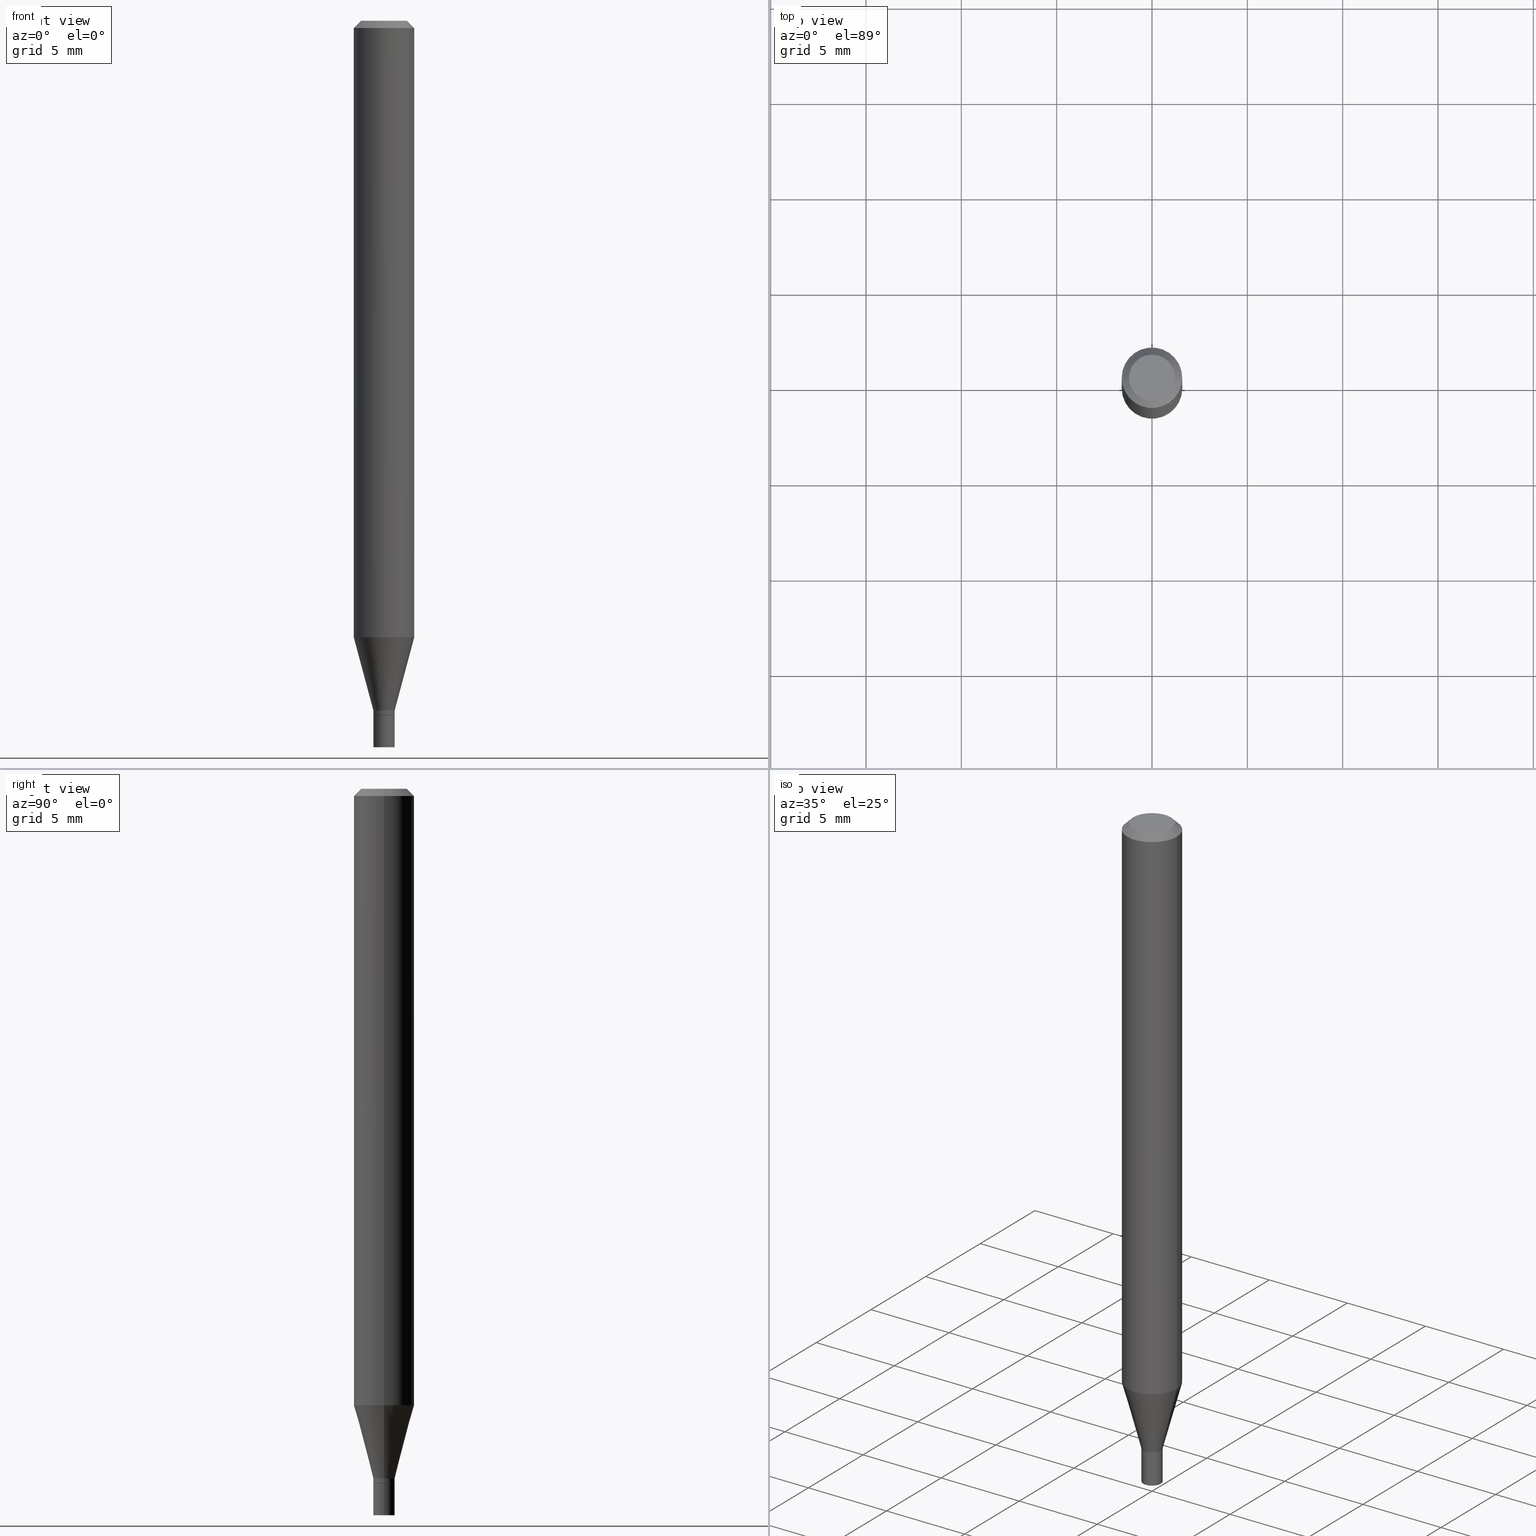
[diagram: canonical four-view strip — front | top / right | iso, engineering-drawing reading convention]
A machine part, canonical four-view strip (front | top / right | iso — engineering-drawing reading convention). The complete STEP part file that produces these views, byte-faithful:
ISO-10303-21;
HEADER;
FILE_DESCRIPTION (( 'STEP AP203' ),
    '1' );
FILE_NAME ('01124.STEP',
    '2024-03-19T23:08:22',
    ( '' ),
    ( '' ),
    'SwSTEP 2.0',
    'SolidWorks 2023',
    '' );
FILE_SCHEMA (( 'CONFIG_CONTROL_DESIGN' ));
ENDSEC;

DATA;
#1 = ORIENTED_EDGE ( 'NONE', *, *, #151, .T. ) ;
#2 = ADVANCED_FACE ( 'NONE', ( #147 ), #47, .F. ) ;
#3 = VECTOR ( 'NONE', #407, 39.37007874015748143 ) ;
#4 = LINE ( 'NONE', #78, #251 ) ;
#5 = PRODUCT_DEFINITION_FORMATION_WITH_SPECIFIED_SOURCE ( 'ANY', '', #374, .NOT_KNOWN. ) ;
#6 =( NAMED_UNIT ( * ) SI_UNIT ( $, .STERADIAN. ) SOLID_ANGLE_UNIT ( ) );
#7 = DIRECTION ( 'NONE',  ( 1.000000000000000000, -6.982962677686266711E-15, 4.876176775795935793E-29 ) ) ;
#8 = CARTESIAN_POINT ( 'NONE',  ( 3.482347580007634944E-29, -4.971869426512640168E-15, -1.424000000000000155 ) ) ;
#9 = CARTESIAN_POINT ( 'NONE',  ( 0.000000000000000000, 0.000000000000000000, 0.000000000000000000 ) ) ;
#10 = VECTOR ( 'NONE', #232, 39.37007874015748143 ) ;
#11 = DATE_AND_TIME ( #269, #420 ) ;
#12 = FACE_OUTER_BOUND ( 'NONE', #278, .T. ) ;
#13 = CARTESIAN_POINT ( 'NONE',  ( 3.506802268069485929E-29, -5.006784239901070239E-15, -1.434000000000000163 ) ) ;
#14 = ADVANCED_FACE ( 'NONE', ( #324 ), #257, .T. ) ;
#15 = CC_DESIGN_PERSON_AND_ORGANIZATION_ASSIGNMENT ( #41, #187, ( #5 ) ) ;
#16 = APPROVAL_DATE_TIME ( #264, #68 ) ;
#17 = LINE ( 'NONE', #90, #10 ) ;
#18 = AXIS2_PLACEMENT_3D ( 'NONE', #246, #379, #313 ) ;
#19 = CC_DESIGN_SECURITY_CLASSIFICATION ( #103, ( #5 ) ) ;
#20 = DIRECTION ( 'NONE',  ( -2.445468806185136597E-29, 3.491481338843145583E-15, 1.000000000000000000 ) ) ;
#21 = DIRECTION ( 'NONE',  ( 1.000000000000000000, -6.982962677686265922E-15, 4.876176775795935793E-29 ) ) ;
#22 = ORIENTED_EDGE ( 'NONE', *, *, #216, .T. ) ;
#23 = CARTESIAN_POINT ( 'NONE',  ( 3.668203209277704895E-29, -5.237222008264718177E-15, -1.500000000000000222 ) ) ;
#24 = ORIENTED_EDGE ( 'NONE', *, *, #66, .T. ) ;
#25 = VECTOR ( 'NONE', #72, 39.37007874015748143 ) ;
#26 = LOCAL_TIME ( 19, 8, 22.00000000000000000, #142 ) ;
#27 = CARTESIAN_POINT ( 'NONE',  ( 3.482347580007634944E-29, -4.971869426512640168E-15, -1.424000000000000155 ) ) ;
#28 = VERTEX_POINT ( 'NONE', #389 ) ;
#29 = LINE ( 'NONE', #63, #342 ) ;
#30 = ORIENTED_EDGE ( 'NONE', *, *, #406, .F. ) ;
#31 = EDGE_CURVE ( 'NONE', #418, #28, #75, .T. ) ;
#32 = EDGE_CURVE ( 'NONE', #71, #414, #4, .T. ) ;
#33 =( NAMED_UNIT ( * ) PLANE_ANGLE_UNIT ( ) SI_UNIT ( $, .RADIAN. ) );
#34 = ORIENTED_EDGE ( 'NONE', *, *, #359, .F. ) ;
#35 = AXIS2_PLACEMENT_3D ( 'NONE', #419, #341, #21 ) ;
#36 = MECHANICAL_CONTEXT ( 'NONE', #81, 'mechanical' ) ;
#37 = LOCAL_TIME ( 19, 8, 22.00000000000000000, #195 ) ;
#38 = CARTESIAN_POINT ( 'NONE',  ( 0.02199999999999992240, -5.125494605421737215E-15, -1.424000000000000155 ) ) ;
#39 = EDGE_CURVE ( 'NONE', #350, #418, #170, .T. ) ;
#40 = ORIENTED_EDGE ( 'NONE', *, *, #330, .F. ) ;
#41 = PERSON_AND_ORGANIZATION ( #421, #439 ) ;
#42 = CARTESIAN_POINT ( 'NONE',  ( -0.02199999999999992240, 1.563194018672214895E-16, -1.082165719856075386E-30 ) ) ;
#43 = APPLICATION_CONTEXT ( 'configuration controlled 3d designs of mechanical parts and assemblies' ) ;
#44 = PERSON_AND_ORGANIZATION ( #421, #439 ) ;
#45 = CONICAL_SURFACE ( 'NONE', #404, 0.06250000000000000000, 0.7853981633974439491 ) ;
#46 = DIRECTION ( 'NONE',  ( -2.445468806185136597E-29, 3.491481338843145583E-15, 1.000000000000000000 ) ) ;
#47 = PLANE ( 'NONE',  #461 ) ;
#48 = CARTESIAN_POINT ( 'NONE',  ( 3.506802268069485929E-29, -5.006784239901070239E-15, -1.434000000000000163 ) ) ;
#49 = CARTESIAN_POINT ( 'NONE',  ( -0.06250000000000000000, 4.440892098500626162E-16, -3.074334431409316114E-30 ) ) ;
#50 = VECTOR ( 'NONE', #94, 39.37007874015748143 ) ;
#51 = PERSON_AND_ORGANIZATION ( #421, #439 ) ;
#52 = ADVANCED_FACE ( 'NONE', ( #215 ), #355, .T. ) ;
#53 = DIRECTION ( 'NONE',  ( 1.000000000000000000, -6.982962677686266711E-15, 4.876176775795934672E-29 ) ) ;
#54 = ADVANCED_FACE ( 'NONE', ( #143 ), #362, .T. ) ;
#55 = DIRECTION ( 'NONE',  ( 1.000000000000000000, -6.982962677686266711E-15, 0.000000000000000000 ) ) ;
#56 = DIRECTION ( 'NONE',  ( -2.445468806185136597E-29, 3.491481338843145583E-15, 1.000000000000000000 ) ) ;
#57 = AXIS2_PLACEMENT_3D ( 'NONE', #428, #323, #111 ) ;
#58 = AXIS2_PLACEMENT_3D ( 'NONE', #188, #387, #7 ) ;
#59 = CARTESIAN_POINT ( 'NONE',  ( -0.06250000000000000000, -1.804166302005196625E-15, -0.01499999999999999944 ) ) ;
#60 = ORIENTED_EDGE ( 'NONE', *, *, #330, .T. ) ;
#61 = DIRECTION ( 'NONE',  ( -2.445468806185136597E-29, 3.491481338843145583E-15, 1.000000000000000000 ) ) ;
#62 = ORIENTED_EDGE ( 'NONE', *, *, #197, .F. ) ;
#63 = CARTESIAN_POINT ( 'NONE',  ( -0.02149999999999999481, -4.854017551712648958E-15, -1.434000000000000163 ) ) ;
#64 = EDGE_LOOP ( 'NONE', ( #101, #373 ) ) ;
#65 = CIRCLE ( 'NONE', #177, 0.02199999999999999872 ) ;
#66 = EDGE_CURVE ( 'NONE', #97, #376, #117, .T. ) ;
#67 = FACE_OUTER_BOUND ( 'NONE', #327, .T. ) ;
#68 = APPROVAL ( #436, 'UNSPECIFIED' ) ;
#69 = VERTEX_POINT ( 'NONE', #189 ) ;
#70 = DIRECTION ( 'NONE',  ( -1.000000000000000000, 6.982962677686265922E-15, -4.876176775795935793E-29 ) ) ;
#71 = VERTEX_POINT ( 'NONE', #38 ) ;
#72 = DIRECTION ( 'NONE',  ( 0.7071067811865444641, -7.319954787623245001E-15, -0.7071067811865505703 ) ) ;
#73 = AXIS2_PLACEMENT_3D ( 'NONE', #48, #82, #363 ) ;
#74 = LENGTH_MEASURE_WITH_UNIT ( LENGTH_MEASURE( 0.02539999999999999897 ), #423 );
#75 = LINE ( 'NONE', #42, #452 ) ;
#76 = ORIENTED_EDGE ( 'NONE', *, *, #85, .F. ) ;
#77 =( CONVERSION_BASED_UNIT ( 'INCH', #74 ) LENGTH_UNIT ( ) NAMED_UNIT ( #293 ) );
#78 = CARTESIAN_POINT ( 'NONE',  ( 0.02199999999999992240, -5.125494605421737215E-15, -1.424000000000000155 ) ) ;
#79 = VECTOR ( 'NONE', #86, 39.37007874015748143 ) ;
#80 = VERTEX_POINT ( 'NONE', #212 ) ;
#81 = APPLICATION_CONTEXT ( 'configuration controlled 3d designs of mechanical parts and assemblies' ) ;
#82 = DIRECTION ( 'NONE',  ( -2.445468806185136597E-29, 3.491481338843145583E-15, 1.000000000000000000 ) ) ;
#83 = DIRECTION ( 'NONE',  ( -2.445468806185136597E-29, 3.491481338843145583E-15, 1.000000000000000000 ) ) ;
#84 = ADVANCED_FACE ( 'NONE', ( #179 ), #45, .T. ) ;
#85 = EDGE_CURVE ( 'NONE', #414, #376, #440, .T. ) ;
#86 = DIRECTION ( 'NONE',  ( -0.2588190451025215721, 5.211531920934551831E-15, 0.9659258262890679791 ) ) ;
#87 = AXIS2_PLACEMENT_3D ( 'NONE', #100, #61, #303 ) ;
#88 = LOCAL_TIME ( 19, 8, 22.00000000000000000, #214 ) ;
#89 = LINE ( 'NONE', #265, #161 ) ;
#90 = CARTESIAN_POINT ( 'NONE',  ( -0.02199999999999999872, 1.563194018672220318E-16, -1.082165719856079240E-30 ) ) ;
#91 = CARTESIAN_POINT ( 'NONE',  ( 3.112719719770822202E-29, -4.444138803627871009E-15, -1.272851942293460770 ) ) ;
#92 = ORIENTED_EDGE ( 'NONE', *, *, #280, .T. ) ;
#93 = AXIS2_PLACEMENT_3D ( 'NONE', #9, #367, #401 ) ;
#94 = DIRECTION ( 'NONE',  ( 0.7071067811865656694, -2.468850131082446387E-15, 0.7071067811865294761 ) ) ;
#95 = ORIENTED_EDGE ( 'NONE', *, *, #408, .T. ) ;
#96 = CARTESIAN_POINT ( 'NONE',  ( 0.06250000000000000000, -4.880573970983262678E-15, -1.272851942293460770 ) ) ;
#97 = VERTEX_POINT ( 'NONE', #160 ) ;
#98 = EDGE_CURVE ( 'NONE', #424, #69, #200, .T. ) ;
#99 = CC_DESIGN_PERSON_AND_ORGANIZATION_ASSIGNMENT ( #44, #110, ( #5 ) ) ;
#100 = CARTESIAN_POINT ( 'NONE',  ( -3.223020679335594837E-45, 4.601619341103081537E-31, 1.317956160873471783E-16 ) ) ;
#101 = ORIENTED_EDGE ( 'NONE', *, *, #279, .F. ) ;
#102 = CIRCLE ( 'NONE', #317, 0.02149999999999999481 ) ;
#103 = SECURITY_CLASSIFICATION ( '', '', #256 ) ;
#104 = CARTESIAN_POINT ( 'NONE',  ( 3.668203209277705088E-31, -5.237222008264718399E-17, -0.01499999999999999944 ) ) ;
#105 = CALENDAR_DATE ( 2024, 19, 3 ) ;
#106 = ORIENTED_EDGE ( 'NONE', *, *, #39, .F. ) ;
#107 = UNCERTAINTY_MEASURE_WITH_UNIT (LENGTH_MEASURE( 1.000000000000000082E-05 ), #77, 'distance_accuracy_value', 'NONE');
#108 = ORIENTED_EDGE ( 'NONE', *, *, #298, .F. ) ;
#109 = AXIS2_PLACEMENT_3D ( 'NONE', #23, #459, #168 ) ;
#110 = PERSON_AND_ORGANIZATION_ROLE ( 'creator' ) ;
#111 = DIRECTION ( 'NONE',  ( 1.000000000000000000, -6.982962677686266711E-15, 4.876176775795935793E-29 ) ) ;
#112 = APPROVAL_STATUS ( 'not_yet_approved' ) ;
#113 = ORIENTED_EDGE ( 'NONE', *, *, #134, .F. ) ;
#114 = EDGE_CURVE ( 'NONE', #337, #414, #429, .T. ) ;
#115 = PLANE ( 'NONE',  #244 ) ;
#116 = ADVANCED_FACE ( 'NONE', ( #292 ), #120, .T. ) ;
#117 = LINE ( 'NONE', #398, #25 ) ;
#118 = COORDINATED_UNIVERSAL_TIME_OFFSET ( 5, 0, .BEHIND. ) ;
#119 = CIRCLE ( 'NONE', #171, 0.02149999999999999481 ) ;
#120 = CYLINDRICAL_SURFACE ( 'NONE', #370, 0.02199999999999992240 ) ;
#121 = DIRECTION ( 'NONE',  ( 1.000000000000000000, -6.982962677686269866E-15, 0.000000000000000000 ) ) ;
#122 = PERSON_AND_ORGANIZATION_ROLE ( 'classification_officer' ) ;
#123 = CARTESIAN_POINT ( 'NONE',  ( -0.02199999999999992240, -4.815550024645417988E-15, -1.424000000000000155 ) ) ;
#124 = DIRECTION ( 'NONE',  ( -1.000000000000000000, 6.982962677686266711E-15, 0.000000000000000000 ) ) ;
#125 = AXIS2_PLACEMENT_3D ( 'NONE', #8, #294, #121 ) ;
#126 = LINE ( 'NONE', #49, #148 ) ;
#127 = DIRECTION ( 'NONE',  ( 1.000000000000000000, -6.982962677686266711E-15, 0.000000000000000000 ) ) ;
#128 = CARTESIAN_POINT ( 'NONE',  ( 1.536251789091328911E-16, 0.02199999999999499231, -1.434000000000000163 ) ) ;
#129 = ORIENTED_EDGE ( 'NONE', *, *, #297, .T. ) ;
#130 = CLOSED_SHELL ( 'NONE', ( #311, #340, #231, #394 ) ) ;
#131 = AXIS2_PLACEMENT_3D ( 'NONE', #413, #417, #165 ) ;
#132 = DIRECTION ( 'NONE',  ( -2.445468806185136597E-29, 3.491481338843145583E-15, 1.000000000000000000 ) ) ;
#133 = ORIENTED_EDGE ( 'NONE', *, *, #408, .F. ) ;
#134 = EDGE_CURVE ( 'NONE', #167, #424, #296, .T. ) ;
#135 = DIRECTION ( 'NONE',  ( 1.000000000000000000, -6.982962677686265922E-15, 4.876176775795936353E-29 ) ) ;
#136 = VERTEX_POINT ( 'NONE', #437 ) ;
#137 = CARTESIAN_POINT ( 'NONE',  ( 0.02149999999999999481, -5.156917937471325068E-15, -1.434000000000000163 ) ) ;
#138 = EDGE_LOOP ( 'NONE', ( #422, #308 ) ) ;
#139 = MANIFOLD_SOLID_BREP ( 'Body-Move/Copy2[2]', #198 ) ;
#140 = AXIS2_PLACEMENT_3D ( 'NONE', #230, #190, #225 ) ;
#141 =( GEOMETRIC_REPRESENTATION_CONTEXT ( 3 ) GLOBAL_UNCERTAINTY_ASSIGNED_CONTEXT ( ( #107 ) ) GLOBAL_UNIT_ASSIGNED_CONTEXT ( ( #77, #33, #6 ) ) REPRESENTATION_CONTEXT ( 'NONE', 'WORKASPACE' ) );
#142 = COORDINATED_UNIVERSAL_TIME_OFFSET ( 5, 0, .BEHIND. ) ;
#143 = FACE_OUTER_BOUND ( 'NONE', #284, .T. ) ;
#144 = APPROVAL_DATE_TIME ( #386, #152 ) ;
#145 = DIRECTION ( 'NONE',  ( 1.000000000000000000, -6.982962677686266711E-15, 4.876176775795934672E-29 ) ) ;
#146 = COORDINATED_UNIVERSAL_TIME_OFFSET ( 5, 0, .BEHIND. ) ;
#147 = FACE_OUTER_BOUND ( 'NONE', #138, .T. ) ;
#148 = VECTOR ( 'NONE', #263, 39.37007874015748143 ) ;
#149 = AXIS2_PLACEMENT_3D ( 'NONE', #333, #403, #192 ) ;
#150 = ORIENTED_EDGE ( 'NONE', *, *, #216, .F. ) ;
#151 = EDGE_CURVE ( 'NONE', #80, #433, #89, .T. ) ;
#152 = APPROVAL ( #112, 'UNSPECIFIED' ) ;
#153 = CARTESIAN_POINT ( 'NONE',  ( 0.000000000000000000, 0.000000000000000000, 0.000000000000000000 ) ) ;
#154 = CARTESIAN_POINT ( 'NONE',  ( 0.000000000000000000, 0.000000000000000000, 0.000000000000000000 ) ) ;
#155 = LINE ( 'NONE', #302, #3 ) ;
#156 = CONICAL_SURFACE ( 'NONE', #411, 0.02149999999999999481, 0.7853981633974739252 ) ;
#157 = FACE_OUTER_BOUND ( 'NONE', #347, .T. ) ;
#158 = FACE_OUTER_BOUND ( 'NONE', #316, .T. ) ;
#159 = CARTESIAN_POINT ( 'NONE',  ( 0.02199999999999999872, -1.536251789090978361E-16, 1.072758890675105930E-30 ) ) ;
#160 = CARTESIAN_POINT ( 'NONE',  ( 0.04749999999999999362, -4.035134999187576158E-16, 1.317956160873497667E-16 ) ) ;
#161 = VECTOR ( 'NONE', #442, 39.37007874015748143 ) ;
#162 = CC_DESIGN_APPROVAL ( #343, ( #431 ) ) ;
#163 = ADVANCED_FACE ( 'NONE', ( #158 ), #206, .T. ) ;
#164 = CC_DESIGN_DATE_AND_TIME_ASSIGNMENT ( #354, #258, ( #431 ) ) ;
#165 = DIRECTION ( 'NONE',  ( 1.000000000000000000, -6.982962677686266711E-15, 0.000000000000000000 ) ) ;
#166 = DIRECTION ( 'NONE',  ( 1.000000000000000000, -6.982962677686266711E-15, 0.000000000000000000 ) ) ;
#167 = VERTEX_POINT ( 'NONE', #262 ) ;
#168 = DIRECTION ( 'NONE',  ( 1.000000000000000000, -6.982962677686245411E-15, 0.000000000000000000 ) ) ;
#169 = ORIENTED_EDGE ( 'NONE', *, *, #430, .F. ) ;
#170 = CIRCLE ( 'NONE', #226, 0.02199999999999992240 ) ;
#171 = AXIS2_PLACEMENT_3D ( 'NONE', #13, #199, #55 ) ;
#172 = DIRECTION ( 'NONE',  ( -2.445468806185136597E-29, 3.491481338843145583E-15, 1.000000000000000000 ) ) ;
#173 = EDGE_LOOP ( 'NONE', ( #176, #344, #205, #255 ) ) ;
#174 = CARTESIAN_POINT ( 'NONE',  ( 0.02199999999999999872, -5.160409418810168075E-15, -1.434000000000000163 ) ) ;
#175 = ORIENTED_EDGE ( 'NONE', *, *, #430, .T. ) ;
#176 = ORIENTED_EDGE ( 'NONE', *, *, #247, .F. ) ;
#177 = AXIS2_PLACEMENT_3D ( 'NONE', #369, #275, #273 ) ;
#178 = PERSON_AND_ORGANIZATION_ROLE ( 'creator' ) ;
#179 = FACE_OUTER_BOUND ( 'NONE', #250, .T. ) ;
#180 = APPROVAL_ROLE ( '' ) ;
#181 = ORIENTED_EDGE ( 'NONE', *, *, #114, .T. ) ;
#182 = DIRECTION ( 'NONE',  ( -2.445468806185136597E-29, 3.491481338843145583E-15, 1.000000000000000000 ) ) ;
#183 = EDGE_CURVE ( 'NONE', #337, #433, #126, .T. ) ;
#184 = DIRECTION ( 'NONE',  ( -2.445468806185136877E-29, 3.491481338843145188E-15, 1.000000000000000000 ) ) ;
#185 = CC_DESIGN_PERSON_AND_ORGANIZATION_ASSIGNMENT ( #463, #178, ( #431 ) ) ;
#186 = VECTOR ( 'NONE', #331, 39.37007874015748143 ) ;
#187 = PERSON_AND_ORGANIZATION_ROLE ( 'design_supplier' ) ;
#188 = CARTESIAN_POINT ( 'NONE',  ( 0.000000000000000000, 0.000000000000000000, 0.000000000000000000 ) ) ;
#189 = CARTESIAN_POINT ( 'NONE',  ( -0.02199999999999999872, -4.965683722215672817E-15, -1.434000000000000163 ) ) ;
#190 = DIRECTION ( 'NONE',  ( 2.445468806185136597E-29, -3.491481338843145583E-15, -1.000000000000000000 ) ) ;
#191 = AXIS2_PLACEMENT_3D ( 'NONE', #241, #449, #335 ) ;
#192 = DIRECTION ( 'NONE',  ( 1.000000000000000000, -6.982962677686269866E-15, 0.000000000000000000 ) ) ;
#193 = PRODUCT_DEFINITION_SHAPE ( 'NONE', 'NONE',  #431 ) ;
#194 = CARTESIAN_POINT ( 'NONE',  ( 3.506802268069485929E-29, -5.006784239901070239E-15, -1.434000000000000163 ) ) ;
#195 = COORDINATED_UNIVERSAL_TIME_OFFSET ( 5, 0, .BEHIND. ) ;
#196 = DIRECTION ( 'NONE',  ( 1.000000000000000000, -6.982962677686262766E-15, 0.000000000000000000 ) ) ;
#197 = EDGE_CURVE ( 'NONE', #350, #71, #155, .T. ) ;
#198 = CLOSED_SHELL ( 'NONE', ( #54, #266, #229, #14, #163, #444, #52, #84, #2, #466, #377, #116 ) ) ;
#199 = DIRECTION ( 'NONE',  ( -2.445468806185136597E-29, 3.491481338843145583E-15, 1.000000000000000000 ) ) ;
#200 = CIRCLE ( 'NONE', #73, 0.02199999999999999872 ) ;
#201 = FACE_OUTER_BOUND ( 'NONE', #173, .T. ) ;
#202 = LINE ( 'NONE', #137, #50 ) ;
#203 = ORIENTED_EDGE ( 'NONE', *, *, #285, .F. ) ;
#204 = FACE_OUTER_BOUND ( 'NONE', #383, .T. ) ;
#205 = ORIENTED_EDGE ( 'NONE', *, *, #32, .T. ) ;
#206 = CONICAL_SURFACE ( 'NONE', #125, 0.02199999999999992240, 0.2617993877991502960 ) ;
#207 = AXIS2_PLACEMENT_3D ( 'NONE', #104, #20, #127 ) ;
#208 = CARTESIAN_POINT ( 'NONE',  ( -0.02199999999999999872, -4.965683722215672817E-15, -1.500000000000000222 ) ) ;
#209 = ORIENTED_EDGE ( 'NONE', *, *, #312, .F. ) ;
#210 = ORIENTED_EDGE ( 'NONE', *, *, #378, .F. ) ;
#211 = DIRECTION ( 'NONE',  ( 1.000000000000000000, -6.982962677686265922E-15, 4.876176775795935793E-29 ) ) ;
#212 = CARTESIAN_POINT ( 'NONE',  ( -0.04749999999999999362, 3.578768372314212971E-16, 1.317956160873447624E-16 ) ) ;
#213 = AXIS2_PLACEMENT_3D ( 'NONE', #128, #415, #70 ) ;
#214 = COORDINATED_UNIVERSAL_TIME_OFFSET ( 5, 0, .BEHIND. ) ;
#215 = FACE_OUTER_BOUND ( 'NONE', #248, .T. ) ;
#216 = EDGE_CURVE ( 'NONE', #418, #350, #227, .T. ) ;
#217 = CALENDAR_DATE ( 2024, 19, 3 ) ;
#218 = CC_DESIGN_PERSON_AND_ORGANIZATION_ASSIGNMENT ( #290, #432, ( #374 ) ) ;
#219 = ORIENTED_EDGE ( 'NONE', *, *, #326, .F. ) ;
#220 = DIRECTION ( 'NONE',  ( 1.000000000000000000, -6.982962677686269866E-15, 0.000000000000000000 ) ) ;
#221 = CARTESIAN_POINT ( 'NONE',  ( 3.505579533666394249E-29, -5.005038499231650313E-15, -1.433500000000000218 ) ) ;
#222 = ORIENTED_EDGE ( 'NONE', *, *, #183, .T. ) ;
#223 = DIRECTION ( 'NONE',  ( -2.445468806185136597E-29, 3.491481338843145583E-15, 1.000000000000000000 ) ) ;
#224 = APPROVAL_ROLE ( '' ) ;
#225 = DIRECTION ( 'NONE',  ( -1.000000000000000000, 6.982962677686266711E-15, 0.000000000000000000 ) ) ;
#226 = AXIS2_PLACEMENT_3D ( 'NONE', #221, #46, #465 ) ;
#227 = CIRCLE ( 'NONE', #149, 0.02199999999999992240 ) ;
#228 = CARTESIAN_POINT ( 'NONE',  ( 0.000000000000000000, 0.000000000000000000, 0.000000000000000000 ) ) ;
#229 = ADVANCED_FACE ( 'NONE', ( #12 ), #260, .T. ) ;
#230 = CARTESIAN_POINT ( 'NONE',  ( 3.668203209277705088E-31, -5.237222008264718399E-17, -0.01499999999999999944 ) ) ;
#231 = ADVANCED_FACE ( 'NONE', ( #332 ), #441, .T. ) ;
#232 = DIRECTION ( 'NONE',  ( -2.445468806185136877E-29, 3.491481338843145188E-15, 1.000000000000000000 ) ) ;
#233 = PLANE ( 'NONE',  #35 ) ;
#234 = AXIS2_PLACEMENT_3D ( 'NONE', #281, #338, #346 ) ;
#235 = ORIENTED_EDGE ( 'NONE', *, *, #245, .T. ) ;
#236 = AXIS2_PLACEMENT_3D ( 'NONE', #322, #182, #220 ) ;
#237 = CARTESIAN_POINT ( 'NONE',  ( -0.06250000000000000000, -4.000049593777808392E-15, -1.272851942293460770 ) ) ;
#238 = EDGE_LOOP ( 'NONE', ( #242, #22, #286, #210 ) ) ;
#239 = CARTESIAN_POINT ( 'NONE',  ( -0.02199999999999992240, -4.848719097364427345E-15, -1.433500000000000218 ) ) ;
#240 = ORIENTED_EDGE ( 'NONE', *, *, #325, .T. ) ;
#241 = CARTESIAN_POINT ( 'NONE',  ( 3.482347580007634944E-29, -4.971869426512640168E-15, -1.424000000000000155 ) ) ;
#242 = ORIENTED_EDGE ( 'NONE', *, *, #31, .F. ) ;
#243 = AXIS2_PLACEMENT_3D ( 'NONE', #91, #172, #309 ) ;
#244 = AXIS2_PLACEMENT_3D ( 'NONE', #254, #348, #211 ) ;
#245 = EDGE_CURVE ( 'NONE', #136, #416, #102, .T. ) ;
#246 = CARTESIAN_POINT ( 'NONE',  ( 3.668203209277704895E-29, -5.237222008264718177E-15, -1.500000000000000222 ) ) ;
#247 = EDGE_CURVE ( 'NONE', #28, #337, #328, .T. ) ;
#248 = EDGE_LOOP ( 'NONE', ( #272, #181, #314, #169 ) ) ;
#249 = DIRECTION ( 'NONE',  ( -1.000000000000000000, 6.982962677686265922E-15, -4.876176775795935793E-29 ) ) ;
#250 = EDGE_LOOP ( 'NONE', ( #458, #108, #1, #175 ) ) ;
#251 = VECTOR ( 'NONE', #289, 39.37007874015748143 ) ;
#252 = CC_DESIGN_PERSON_AND_ORGANIZATION_ASSIGNMENT ( #283, #122, ( #103 ) ) ;
#253 = CIRCLE ( 'NONE', #243, 0.06250000000000000000 ) ;
#254 = CARTESIAN_POINT ( 'NONE',  ( 3.506802268069485929E-29, -5.006784239901070239E-15, -1.434000000000000163 ) ) ;
#255 = ORIENTED_EDGE ( 'NONE', *, *, #114, .F. ) ;
#256 = SECURITY_CLASSIFICATION_LEVEL ( 'unclassified' ) ;
#257 = CYLINDRICAL_SURFACE ( 'NONE', #57, 0.06250000000000000000 ) ;
#258 = DATE_TIME_ROLE ( 'creation_date' ) ;
#259 = ORIENTED_EDGE ( 'NONE', *, *, #312, .T. ) ;
#260 = CONICAL_SURFACE ( 'NONE', #140, 0.06250000000000000000, 0.7853981633974439491 ) ;
#261 = DATE_TIME_ROLE ( 'classification_date' ) ;
#262 = CARTESIAN_POINT ( 'NONE',  ( 0.02199999999999999872, -5.390847187173816013E-15, -1.500000000000000222 ) ) ;
#263 = DIRECTION ( 'NONE',  ( -2.445468806185136877E-29, 3.491481338843145188E-15, 1.000000000000000000 ) ) ;
#264 = DATE_AND_TIME ( #364, #37 ) ;
#265 = CARTESIAN_POINT ( 'NONE',  ( -0.06250000000000000000, 3.840629472727444916E-16, -0.01499999999999999944 ) ) ;
#266 = ADVANCED_FACE ( 'NONE', ( #157 ), #361, .T. ) ;
#267 = AXIS2_PLACEMENT_3D ( 'NONE', #194, #56, #402 ) ;
#268 = DIRECTION ( 'NONE',  ( 1.000000000000000000, -6.982962677686266711E-15, 0.000000000000000000 ) ) ;
#269 = CALENDAR_DATE ( 2024, 19, 3 ) ;
#270 = DIRECTION ( 'NONE',  ( -2.445468806185136597E-29, 3.491481338843145583E-15, 1.000000000000000000 ) ) ;
#271 = CYLINDRICAL_SURFACE ( 'NONE', #443, 0.02199999999999999872 ) ;
#272 = ORIENTED_EDGE ( 'NONE', *, *, #183, .F. ) ;
#273 = DIRECTION ( 'NONE',  ( 1.000000000000000000, -6.982962677686245411E-15, 0.000000000000000000 ) ) ;
#274 = ORIENTED_EDGE ( 'NONE', *, *, #325, .F. ) ;
#275 = DIRECTION ( 'NONE',  ( -2.445468806185136597E-29, 3.491481338843145583E-15, 1.000000000000000000 ) ) ;
#276 = ORIENTED_EDGE ( 'NONE', *, *, #98, .T. ) ;
#277 = DIRECTION ( 'NONE',  ( 1.000000000000000000, -6.982962677686269866E-15, 0.000000000000000000 ) ) ;
#278 = EDGE_LOOP ( 'NONE', ( #219, #24, #349, #282 ) ) ;
#279 = EDGE_CURVE ( 'NONE', #416, #136, #119, .T. ) ;
#280 = EDGE_CURVE ( 'NONE', #321, #69, #17, .T. ) ;
#281 = CARTESIAN_POINT ( 'NONE',  ( -3.223020679335594837E-45, 4.601619341103081537E-31, 1.317956160873471783E-16 ) ) ;
#282 = ORIENTED_EDGE ( 'NONE', *, *, #151, .F. ) ;
#283 = PERSON_AND_ORGANIZATION ( #421, #439 ) ;
#284 = EDGE_LOOP ( 'NONE', ( #410, #360, #133, #62 ) ) ;
#285 = EDGE_CURVE ( 'NONE', #69, #424, #65, .T. ) ;
#286 = ORIENTED_EDGE ( 'NONE', *, *, #197, .T. ) ;
#287 = CARTESIAN_POINT ( 'NONE',  ( 3.316907271900976096E-16, 0.04749999999999999362, -9.994755555137580731E-17 ) ) ;
#288 = APPROVAL_DATE_TIME ( #356, #343 ) ;
#289 = DIRECTION ( 'NONE',  ( 0.2588190451025215721, 1.565188264969619995E-15, 0.9659258262890679791 ) ) ;
#290 = PERSON_AND_ORGANIZATION ( #421, #439 ) ;
#291 = ORIENTED_EDGE ( 'NONE', *, *, #32, .F. ) ;
#292 = FACE_OUTER_BOUND ( 'NONE', #238, .T. ) ;
#293 = DIMENSIONAL_EXPONENTS ( 1.000000000000000000, 0.000000000000000000, 0.000000000000000000, 0.000000000000000000, 0.000000000000000000, 0.000000000000000000, 0.000000000000000000 ) ;
#294 = DIRECTION ( 'NONE',  ( -2.445468806185136597E-29, 3.491481338843145583E-15, 1.000000000000000000 ) ) ;
#295 = SHAPE_DEFINITION_REPRESENTATION ( #193, #353 ) ;
#296 = LINE ( 'NONE', #159, #186 ) ;
#297 = EDGE_CURVE ( 'NONE', #167, #321, #307, .T. ) ;
#298 = EDGE_CURVE ( 'NONE', #80, #97, #381, .T. ) ;
#299 = CARTESIAN_POINT ( 'NONE',  ( 0.06250000000000000000, -4.364351673553916694E-16, 3.047610484872459871E-30 ) ) ;
#300 = AXIS2_PLACEMENT_3D ( 'NONE', #154, #435, #145 ) ;
#301 = LOCAL_TIME ( 19, 8, 22.00000000000000000, #146 ) ;
#302 = CARTESIAN_POINT ( 'NONE',  ( 0.02199999999999992240, -1.536251789090973184E-16, 1.072758890675101902E-30 ) ) ;
#303 = DIRECTION ( 'NONE',  ( 1.000000000000000000, -6.982962677686267499E-15, 4.884662768193073002E-29 ) ) ;
#304 = DIRECTION ( 'NONE',  ( -2.445468806185136597E-29, 3.491481338843145583E-15, 1.000000000000000000 ) ) ;
#305 = ORIENTED_EDGE ( 'NONE', *, *, #285, .T. ) ;
#306 = CARTESIAN_POINT ( 'NONE',  ( 0.02199999999999992240, -5.158663678140746572E-15, -1.433500000000000218 ) ) ;
#307 = CIRCLE ( 'NONE', #18, 0.02199999999999999872 ) ;
#308 = ORIENTED_EDGE ( 'NONE', *, *, #326, .T. ) ;
#309 = DIRECTION ( 'NONE',  ( 1.000000000000000000, -6.982962677686262766E-15, 0.000000000000000000 ) ) ;
#310 = EDGE_LOOP ( 'NONE', ( #129, #92, #339, #113 ) ) ;
#311 = ADVANCED_FACE ( 'NONE', ( #336 ), #271, .T. ) ;
#312 = EDGE_CURVE ( 'NONE', #414, #337, #253, .T. ) ;
#313 = DIRECTION ( 'NONE',  ( 1.000000000000000000, -6.982962677686245411E-15, 0.000000000000000000 ) ) ;
#314 = ORIENTED_EDGE ( 'NONE', *, *, #85, .T. ) ;
#315 = APPROVAL_STATUS ( 'not_yet_approved' ) ;
#316 = EDGE_LOOP ( 'NONE', ( #95, #385, #209, #291 ) ) ;
#317 = AXIS2_PLACEMENT_3D ( 'NONE', #368, #223, #268 ) ;
#318 = CALENDAR_DATE ( 2024, 19, 3 ) ;
#319 = CARTESIAN_POINT ( 'NONE',  ( 3.668203209277705088E-31, -5.237222008264718399E-17, -0.01499999999999999944 ) ) ;
#320 = PERSON_AND_ORGANIZATION ( #421, #439 ) ;
#321 = VERTEX_POINT ( 'NONE', #208 ) ;
#322 = CARTESIAN_POINT ( 'NONE',  ( 3.482347580007634944E-29, -4.971869426512640168E-15, -1.424000000000000155 ) ) ;
#323 = DIRECTION ( 'NONE',  ( -2.445468806185136597E-29, 3.491481338843145583E-15, 1.000000000000000000 ) ) ;
#324 = FACE_OUTER_BOUND ( 'NONE', #426, .T. ) ;
#325 = EDGE_CURVE ( 'NONE', #321, #167, #399, .T. ) ;
#326 = EDGE_CURVE ( 'NONE', #97, #80, #438, .T. ) ;
#327 = EDGE_LOOP ( 'NONE', ( #34, #235, #60, #150 ) ) ;
#328 = LINE ( 'NONE', #123, #79 ) ;
#329 = CIRCLE ( 'NONE', #131, 0.06250000000000000000 ) ;
#330 = EDGE_CURVE ( 'NONE', #416, #350, #202, .T. ) ;
#331 = DIRECTION ( 'NONE',  ( -2.445468806185136877E-29, 3.491481338843145188E-15, 1.000000000000000000 ) ) ;
#332 = FACE_OUTER_BOUND ( 'NONE', #392, .T. ) ;
#333 = CARTESIAN_POINT ( 'NONE',  ( 3.505579533666394249E-29, -5.005038499231650313E-15, -1.433500000000000218 ) ) ;
#334 = VECTOR ( 'NONE', #405, 39.37007874015748143 ) ;
#335 = DIRECTION ( 'NONE',  ( 1.000000000000000000, -6.982962677686269866E-15, 0.000000000000000000 ) ) ;
#336 = FACE_OUTER_BOUND ( 'NONE', #310, .T. ) ;
#337 = VERTEX_POINT ( 'NONE', #237 ) ;
#338 = DIRECTION ( 'NONE',  ( -2.445468806185136597E-29, 3.491481338843145583E-15, 1.000000000000000000 ) ) ;
#339 = ORIENTED_EDGE ( 'NONE', *, *, #98, .F. ) ;
#340 = ADVANCED_FACE ( 'NONE', ( #204 ), #233, .F. ) ;
#341 = DIRECTION ( 'NONE',  ( -2.438088387897960049E-29, 3.491481338843145188E-15, 1.000000000000000000 ) ) ;
#342 = VECTOR ( 'NONE', #409, 39.37007874015748143 ) ;
#343 = APPROVAL ( #315, 'UNSPECIFIED' ) ;
#344 = ORIENTED_EDGE ( 'NONE', *, *, #378, .T. ) ;
#345 = APPROVAL_PERSON_ORGANIZATION ( #397, #152, #180 ) ;
#346 = DIRECTION ( 'NONE',  ( 1.000000000000000000, -6.982962677686267499E-15, 4.884662768193073002E-29 ) ) ;
#347 = EDGE_LOOP ( 'NONE', ( #357, #460, #106, #40 ) ) ;
#348 = DIRECTION ( 'NONE',  ( -2.438088387897960049E-29, 3.491481338843145188E-15, 1.000000000000000000 ) ) ;
#349 = ORIENTED_EDGE ( 'NONE', *, *, #406, .T. ) ;
#350 = VERTEX_POINT ( 'NONE', #306 ) ;
#351 = AXIS2_PLACEMENT_3D ( 'NONE', #27, #132, #277 ) ;
#352 = AXIS2_PLACEMENT_3D ( 'NONE', #153, #391, #425 ) ;
#353 = ADVANCED_BREP_SHAPE_REPRESENTATION ( '01124', ( #447, #139, #352 ), #141 ) ;
#354 = DATE_AND_TIME ( #318, #301 ) ;
#355 = CYLINDRICAL_SURFACE ( 'NONE', #58, 0.06250000000000000000 ) ;
#356 = DATE_AND_TIME ( #217, #88 ) ;
#357 = ORIENTED_EDGE ( 'NONE', *, *, #279, .T. ) ;
#358 = APPLICATION_PROTOCOL_DEFINITION ( 'international standard', 'config_control_design', 1994, #81 ) ;
#359 = EDGE_CURVE ( 'NONE', #136, #418, #29, .T. ) ;
#360 = ORIENTED_EDGE ( 'NONE', *, *, #31, .T. ) ;
#361 = CONICAL_SURFACE ( 'NONE', #267, 0.02149999999999999481, 0.7853981633974739252 ) ;
#362 = CYLINDRICAL_SURFACE ( 'NONE', #300, 0.02199999999999992240 ) ;
#363 = DIRECTION ( 'NONE',  ( 1.000000000000000000, -6.982962677686245411E-15, 0.000000000000000000 ) ) ;
#364 = CALENDAR_DATE ( 2024, 19, 3 ) ;
#365 = DIRECTION ( 'NONE',  ( 2.445468806185136597E-29, -3.491481338843145583E-15, -1.000000000000000000 ) ) ;
#366 = CIRCLE ( 'NONE', #351, 0.02199999999999992240 ) ;
#367 = DIRECTION ( 'NONE',  ( -2.445468806185136597E-29, 3.491481338843145583E-15, 1.000000000000000000 ) ) ;
#368 = CARTESIAN_POINT ( 'NONE',  ( 3.506802268069485929E-29, -5.006784239901070239E-15, -1.434000000000000163 ) ) ;
#369 = CARTESIAN_POINT ( 'NONE',  ( 3.506802268069485929E-29, -5.006784239901070239E-15, -1.434000000000000163 ) ) ;
#370 = AXIS2_PLACEMENT_3D ( 'NONE', #228, #83, #53 ) ;
#371 = CC_DESIGN_APPROVAL ( #152, ( #5 ) ) ;
#372 = PLANE ( 'NONE',  #213 ) ;
#373 = ORIENTED_EDGE ( 'NONE', *, *, #245, .F. ) ;
#374 = PRODUCT ( '01124', '01124', '', ( #36 ) ) ;
#375 = DIRECTION ( 'NONE',  ( -2.445468806185136597E-29, 3.491481338843145583E-15, 1.000000000000000000 ) ) ;
#376 = VERTEX_POINT ( 'NONE', #455 ) ;
#377 = ADVANCED_FACE ( 'NONE', ( #67 ), #156, .T. ) ;
#378 = EDGE_CURVE ( 'NONE', #28, #71, #366, .T. ) ;
#379 = DIRECTION ( 'NONE',  ( -2.445468806185136597E-29, 3.491481338843145583E-15, 1.000000000000000000 ) ) ;
#380 = ORIENTED_EDGE ( 'NONE', *, *, #297, .F. ) ;
#381 = CIRCLE ( 'NONE', #87, 0.04749999999999999362 ) ;
#382 = CARTESIAN_POINT ( 'NONE',  ( 0.02149999999999999481, -5.156917937471325068E-15, -1.434000000000000163 ) ) ;
#383 = EDGE_LOOP ( 'NONE', ( #380, #274 ) ) ;
#384 = CARTESIAN_POINT ( 'NONE',  ( 0.000000000000000000, 0.000000000000000000, 0.000000000000000000 ) ) ;
#385 = ORIENTED_EDGE ( 'NONE', *, *, #247, .T. ) ;
#386 = DATE_AND_TIME ( #105, #26 ) ;
#387 = DIRECTION ( 'NONE',  ( -2.445468806185136597E-29, 3.491481338843145583E-15, 1.000000000000000000 ) ) ;
#388 = FACE_OUTER_BOUND ( 'NONE', #64, .T. ) ;
#389 = CARTESIAN_POINT ( 'NONE',  ( -0.02199999999999992240, -4.407799809211612796E-15, -1.424000000000000155 ) ) ;
#390 = CIRCLE ( 'NONE', #191, 0.02199999999999992240 ) ;
#391 = DIRECTION ( 'NONE',  ( 0.000000000000000000, 0.000000000000000000, 1.000000000000000000 ) ) ;
#392 = EDGE_LOOP ( 'NONE', ( #456, #240, #451, #203 ) ) ;
#393 = DESIGN_CONTEXT ( 'detailed design', #43, 'design' ) ;
#394 = ADVANCED_FACE ( 'NONE', ( #450 ), #372, .F. ) ;
#395 = CC_DESIGN_DATE_AND_TIME_ASSIGNMENT ( #11, #261, ( #103 ) ) ;
#396 = DIRECTION ( 'NONE',  ( 2.438088387897960049E-29, -3.491481338843145188E-15, -1.000000000000000000 ) ) ;
#397 = PERSON_AND_ORGANIZATION ( #421, #439 ) ;
#398 = CARTESIAN_POINT ( 'NONE',  ( 0.06250000000000000000, -4.811533449433679005E-16, -0.01499999999999999944 ) ) ;
#399 = CIRCLE ( 'NONE', #109, 0.02199999999999999872 ) ;
#400 = CONICAL_SURFACE ( 'NONE', #236, 0.02199999999999992240, 0.2617993877991502960 ) ;
#401 = DIRECTION ( 'NONE',  ( 1.000000000000000000, -6.982962677686265922E-15, 4.876176775795936353E-29 ) ) ;
#402 = DIRECTION ( 'NONE',  ( 1.000000000000000000, -6.982962677686266711E-15, 0.000000000000000000 ) ) ;
#403 = DIRECTION ( 'NONE',  ( -2.445468806185136597E-29, 3.491481338843145583E-15, 1.000000000000000000 ) ) ;
#404 = AXIS2_PLACEMENT_3D ( 'NONE', #319, #365, #124 ) ;
#405 = DIRECTION ( 'NONE',  ( -2.445468806185136877E-29, 3.491481338843145188E-15, 1.000000000000000000 ) ) ;
#406 = EDGE_CURVE ( 'NONE', #376, #433, #329, .T. ) ;
#407 = DIRECTION ( 'NONE',  ( -2.445468806185136877E-29, 3.491481338843145188E-15, 1.000000000000000000 ) ) ;
#408 = EDGE_CURVE ( 'NONE', #71, #28, #390, .T. ) ;
#409 = DIRECTION ( 'NONE',  ( -0.7071067811865656694, 7.493145998870420424E-15, 0.7071067811865294761 ) ) ;
#410 = ORIENTED_EDGE ( 'NONE', *, *, #39, .T. ) ;
#411 = AXIS2_PLACEMENT_3D ( 'NONE', #457, #304, #166 ) ;
#412 = APPROVAL_PERSON_ORGANIZATION ( #51, #68, #224 ) ;
#413 = CARTESIAN_POINT ( 'NONE',  ( 3.668203209277705088E-31, -5.237222008264718399E-17, -0.01499999999999999944 ) ) ;
#414 = VERTEX_POINT ( 'NONE', #96 ) ;
#415 = DIRECTION ( 'NONE',  ( 2.438088387897960049E-29, -3.491481338843145188E-15, -1.000000000000000000 ) ) ;
#416 = VERTEX_POINT ( 'NONE', #382 ) ;
#417 = DIRECTION ( 'NONE',  ( -2.445468806185136597E-29, 3.491481338843145583E-15, 1.000000000000000000 ) ) ;
#418 = VERTEX_POINT ( 'NONE', #239 ) ;
#419 = CARTESIAN_POINT ( 'NONE',  ( 3.584916967085606921E-29, -5.356492647442320375E-15, -1.500000000000000222 ) ) ;
#420 = LOCAL_TIME ( 19, 8, 22.00000000000000000, #118 ) ;
#421 = PERSON ( 'UNSPECIFIED', 'UNSPECIFIED', 'UNSPECIFIED', ('UNSPECIFIED'), ('UNSPECIFIED'), ('UNSPECIFIED') ) ;
#422 = ORIENTED_EDGE ( 'NONE', *, *, #298, .T. ) ;
#423 =( LENGTH_UNIT ( ) NAMED_UNIT ( * ) SI_UNIT ( $, .METRE. ) );
#424 = VERTEX_POINT ( 'NONE', #174 ) ;
#425 = DIRECTION ( 'NONE',  ( 1.000000000000000000, 0.000000000000000000, 0.000000000000000000 ) ) ;
#426 = EDGE_LOOP ( 'NONE', ( #259, #222, #30, #76 ) ) ;
#427 = APPROVAL_ROLE ( '' ) ;
#428 = CARTESIAN_POINT ( 'NONE',  ( 0.000000000000000000, 0.000000000000000000, 0.000000000000000000 ) ) ;
#429 = CIRCLE ( 'NONE', #462, 0.06250000000000000000 ) ;
#430 = EDGE_CURVE ( 'NONE', #433, #376, #453, .T. ) ;
#431 = PRODUCT_DEFINITION ( 'UNKNOWN', '', #5, #393 ) ;
#432 = PERSON_AND_ORGANIZATION_ROLE ( 'design_owner' ) ;
#433 = VERTEX_POINT ( 'NONE', #59 ) ;
#434 = APPLICATION_PROTOCOL_DEFINITION ( 'international standard', 'config_control_design', 1994, #43 ) ;
#435 = DIRECTION ( 'NONE',  ( -2.445468806185136597E-29, 3.491481338843145583E-15, 1.000000000000000000 ) ) ;
#436 = APPROVAL_STATUS ( 'not_yet_approved' ) ;
#437 = CARTESIAN_POINT ( 'NONE',  ( -0.02149999999999999481, -4.851368324538538546E-15, -1.434000000000000163 ) ) ;
#438 = CIRCLE ( 'NONE', #234, 0.04749999999999999362 ) ;
#439 = ORGANIZATION ( 'UNSPECIFIED', 'UNSPECIFIED', '' ) ;
#440 = LINE ( 'NONE', #299, #334 ) ;
#441 = CYLINDRICAL_SURFACE ( 'NONE', #93, 0.02199999999999999872 ) ;
#442 = DIRECTION ( 'NONE',  ( -0.7071067811865444641, 2.468850131082224717E-15, -0.7071067811865505703 ) ) ;
#443 = AXIS2_PLACEMENT_3D ( 'NONE', #384, #375, #135 ) ;
#444 = ADVANCED_FACE ( 'NONE', ( #201 ), #400, .T. ) ;
#445 = APPROVAL_PERSON_ORGANIZATION ( #320, #343, #427 ) ;
#446 = PRODUCT_RELATED_PRODUCT_CATEGORY ( 'detail', '', ( #374 ) ) ;
#447 = MANIFOLD_SOLID_BREP ( 'Body-Move/Copy2[1]', #130 ) ;
#448 = CARTESIAN_POINT ( 'NONE',  ( 3.112719719770822202E-29, -4.444138803627871009E-15, -1.272851942293460770 ) ) ;
#449 = DIRECTION ( 'NONE',  ( -2.445468806185136597E-29, 3.491481338843145583E-15, 1.000000000000000000 ) ) ;
#450 = FACE_OUTER_BOUND ( 'NONE', #464, .T. ) ;
#451 = ORIENTED_EDGE ( 'NONE', *, *, #134, .T. ) ;
#452 = VECTOR ( 'NONE', #184, 39.37007874015748143 ) ;
#453 = CIRCLE ( 'NONE', #207, 0.06250000000000000000 ) ;
#454 = CC_DESIGN_APPROVAL ( #68, ( #103 ) ) ;
#455 = CARTESIAN_POINT ( 'NONE',  ( 0.06250000000000000000, -4.888073874380388472E-16, -0.01499999999999999944 ) ) ;
#456 = ORIENTED_EDGE ( 'NONE', *, *, #280, .F. ) ;
#457 = CARTESIAN_POINT ( 'NONE',  ( 3.506802268069485929E-29, -5.006784239901070239E-15, -1.434000000000000163 ) ) ;
#458 = ORIENTED_EDGE ( 'NONE', *, *, #66, .F. ) ;
#459 = DIRECTION ( 'NONE',  ( -2.445468806185136597E-29, 3.491481338843145583E-15, 1.000000000000000000 ) ) ;
#460 = ORIENTED_EDGE ( 'NONE', *, *, #359, .T. ) ;
#461 = AXIS2_PLACEMENT_3D ( 'NONE', #287, #396, #249 ) ;
#462 = AXIS2_PLACEMENT_3D ( 'NONE', #448, #270, #196 ) ;
#463 = PERSON_AND_ORGANIZATION ( #421, #439 ) ;
#464 = EDGE_LOOP ( 'NONE', ( #276, #305 ) ) ;
#465 = DIRECTION ( 'NONE',  ( 1.000000000000000000, -6.982962677686269866E-15, 0.000000000000000000 ) ) ;
#466 = ADVANCED_FACE ( 'NONE', ( #388 ), #115, .F. ) ;
ENDSEC;
END-ISO-10303-21;
